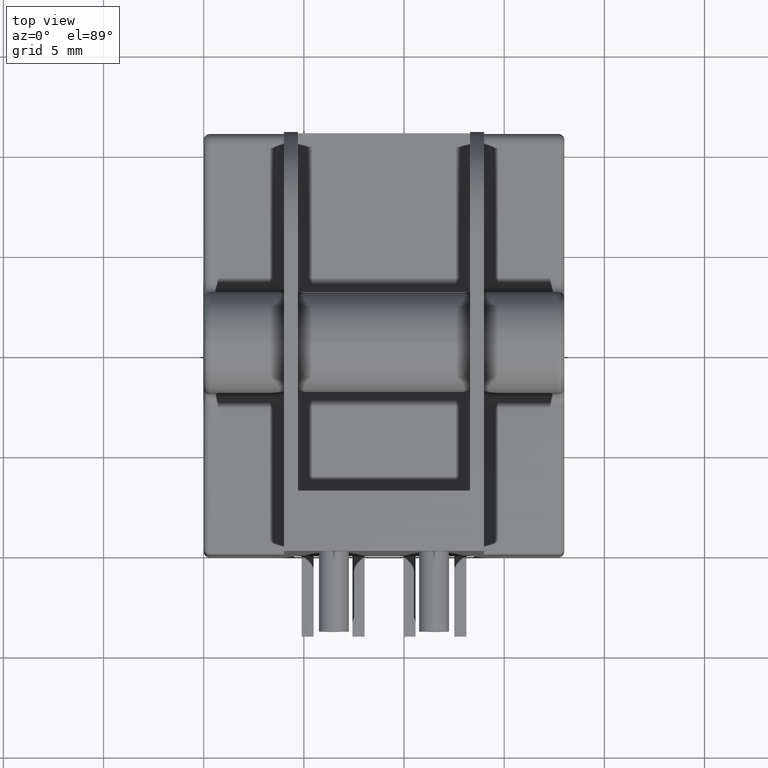
[diagram: clean part render]
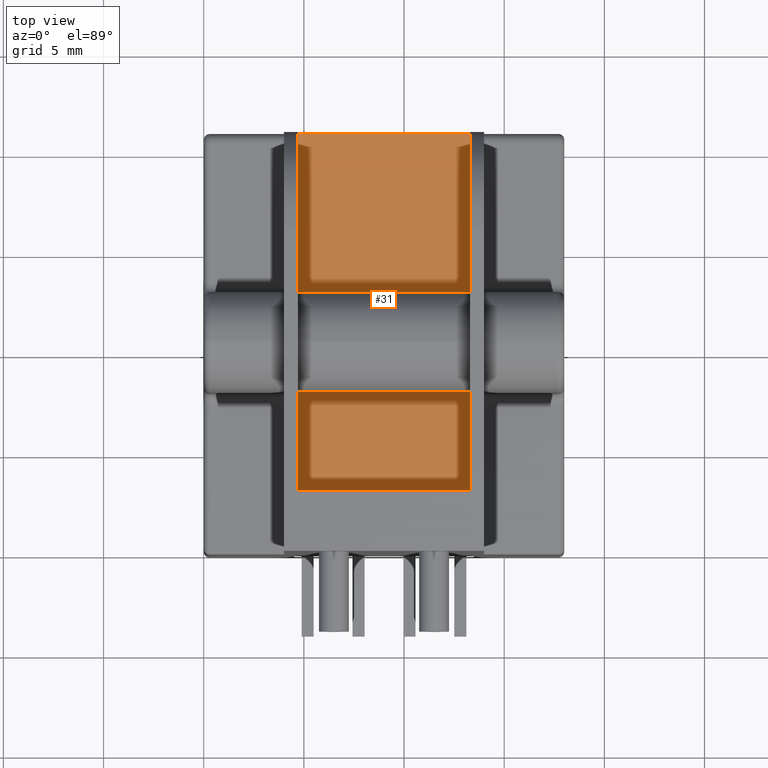
[diagram: same view with one face highlighted and labeled with its STEP entity id]
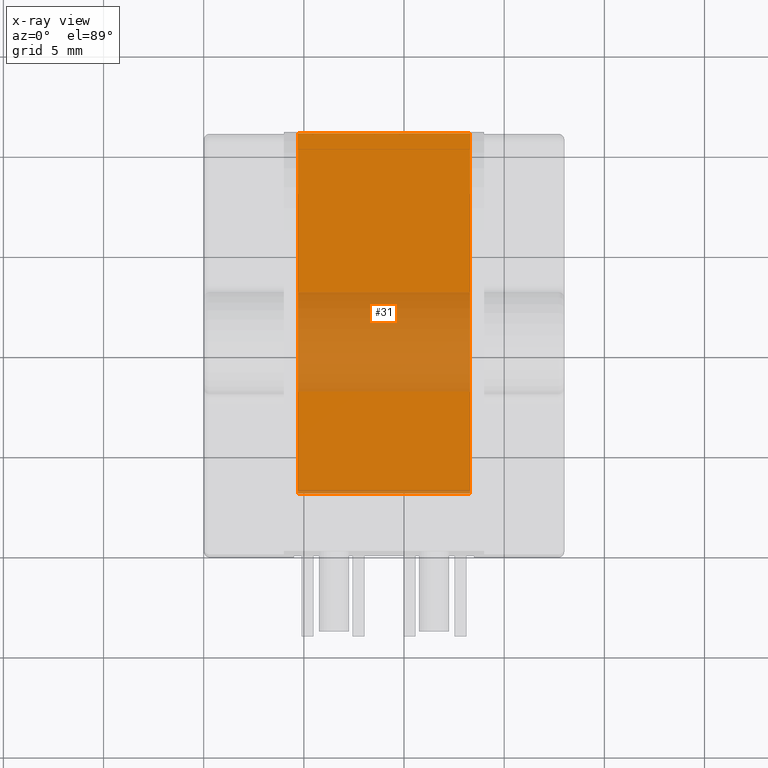
[diagram: x-ray of the same camera — body ghosted, the highlighted face saturated]
A machine part, top view. The second image highlights one B-rep face of the part: STEP entity #31.
The next image is the same camera in x-ray: the body ghosted, the highlighted face saturated — about 28% of this face is hidden behind the body in this view.
In plain terms, the highlighted planar face has unit normal (0, 0, -1).
Its self-contained STEP definition (entity closure, byte-faithful):
#31 = ADVANCED_FACE ( 'NONE', ( #4846 ), #2710, .F. ) ;
#61 = DIRECTION ( 'NONE',  ( -0.0000000000000000000, 1.000000000000000000, -0.0000000000000000000 ) ) ;
#147 = DIRECTION ( 'NONE',  ( -1.000000000000000000, -0.0000000000000000000, -0.0000000000000000000 ) ) ;
#171 = VERTEX_POINT ( 'NONE', #5868 ) ;
#662 = ORIENTED_EDGE ( 'NONE', *, *, #1061, .F. ) ;
#939 = DIRECTION ( 'NONE',  ( -1.000000000000000000, 0.0000000000000000000, -0.0000000000000000000 ) ) ;
#1061 = EDGE_CURVE ( 'NONE', #5423, #171, #5082, .T. ) ;
#1217 = EDGE_CURVE ( 'NONE', #171, #2177, #5465, .T. ) ;
#1249 = EDGE_CURVE ( 'NONE', #5423, #5732, #5271, .T. ) ;
#1315 = DIRECTION ( 'NONE',  ( -1.000000000000000000, -0.0000000000000000000, -0.0000000000000000000 ) ) ;
#2169 = ORIENTED_EDGE ( 'NONE', *, *, #4863, .T. ) ;
#2177 = VERTEX_POINT ( 'NONE', #4180 ) ;
#2319 = CARTESIAN_POINT ( 'NONE',  ( 4.700000000000000200, 2.999999999999999100, -8.618851765386354600 ) ) ;
#2710 = PLANE ( 'NONE',  #4467 ) ;
#2759 = ORIENTED_EDGE ( 'NONE', *, *, #1249, .T. ) ;
#2898 = VECTOR ( 'NONE', #147, 1000.000000000000000 ) ;
#3097 = VECTOR ( 'NONE', #61, 1000.000000000000000 ) ;
#3154 = CARTESIAN_POINT ( 'NONE',  ( 13.29999999999999900, 20.99999999999999600, -8.618851765386354600 ) ) ;
#3254 = LINE ( 'NONE', #5278, #2898 ) ;
#3346 = CARTESIAN_POINT ( 'NONE',  ( 13.29999999999999900, 2.999999999999999100, -8.618851765386354600 ) ) ;
#3557 = ORIENTED_EDGE ( 'NONE', *, *, #1217, .F. ) ;
#3629 = DIRECTION ( 'NONE',  ( 0.0000000000000000000, 0.0000000000000000000, -1.000000000000000000 ) ) ;
#3687 = CARTESIAN_POINT ( 'NONE',  ( 4.700000000000000200, 2.999999999999999100, -8.618851765386354600 ) ) ;
#4180 = CARTESIAN_POINT ( 'NONE',  ( 4.700000000000000200, 20.99999999999999600, -8.618851765386354600 ) ) ;
#4467 = AXIS2_PLACEMENT_3D ( 'NONE', #2319, #3629, #939 ) ;
#4846 = FACE_OUTER_BOUND ( 'NONE', #5570, .T. ) ;
#4863 = EDGE_CURVE ( 'NONE', #5732, #2177, #3254, .T. ) ;
#5082 = LINE ( 'NONE', #6037, #5240 ) ;
#5152 = DIRECTION ( 'NONE',  ( -0.0000000000000000000, 1.000000000000000000, -0.0000000000000000000 ) ) ;
#5240 = VECTOR ( 'NONE', #1315, 1000.000000000000000 ) ;
#5271 = LINE ( 'NONE', #5652, #5887 ) ;
#5278 = CARTESIAN_POINT ( 'NONE',  ( 4.700000000000000200, 20.99999999999999600, -8.618851765386354600 ) ) ;
#5423 = VERTEX_POINT ( 'NONE', #3346 ) ;
#5465 = LINE ( 'NONE', #3687, #3097 ) ;
#5570 = EDGE_LOOP ( 'NONE', ( #2169, #3557, #662, #2759 ) ) ;
#5652 = CARTESIAN_POINT ( 'NONE',  ( 13.29999999999999900, 2.999999999999999100, -8.618851765386354600 ) ) ;
#5732 = VERTEX_POINT ( 'NONE', #3154 ) ;
#5868 = CARTESIAN_POINT ( 'NONE',  ( 4.700000000000000200, 2.999999999999999100, -8.618851765386354600 ) ) ;
#5887 = VECTOR ( 'NONE', #5152, 1000.000000000000000 ) ;
#6037 = CARTESIAN_POINT ( 'NONE',  ( 4.700000000000000200, 2.999999999999999100, -8.618851765386354600 ) ) ;